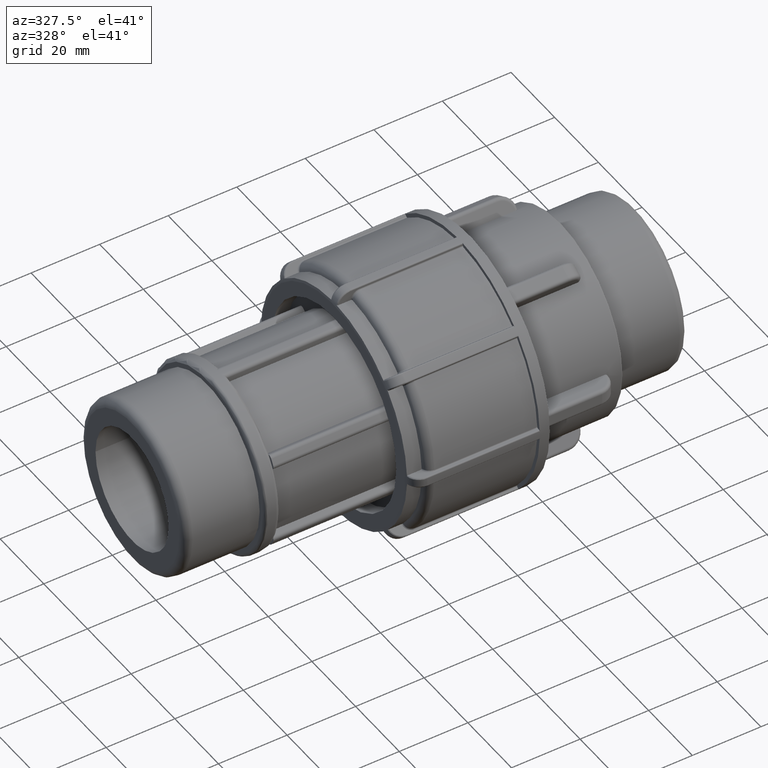
[diagram: clean part render]
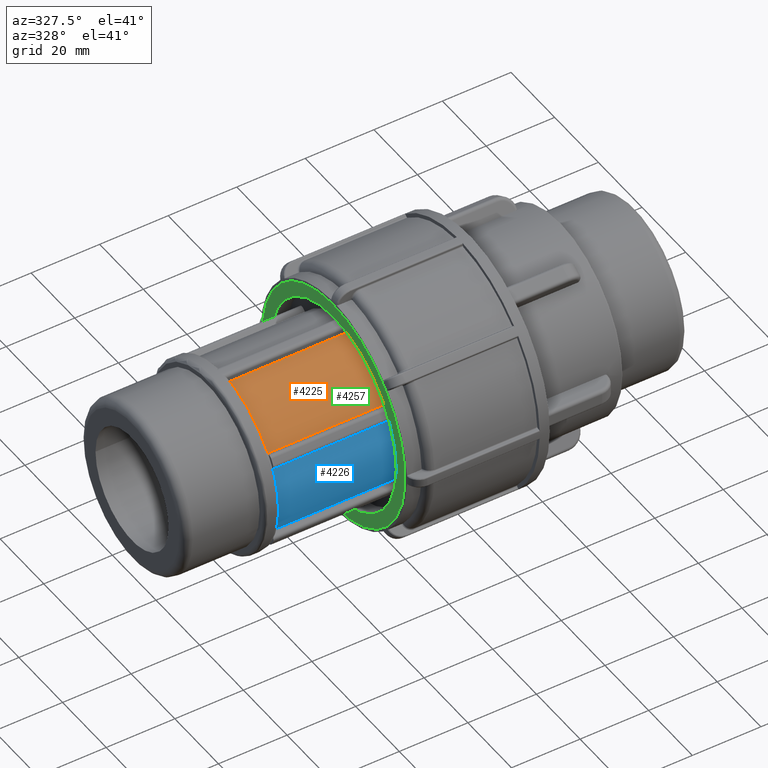
[diagram: same view with three faces highlighted in distinct colors, each labeled with its STEP entity id]
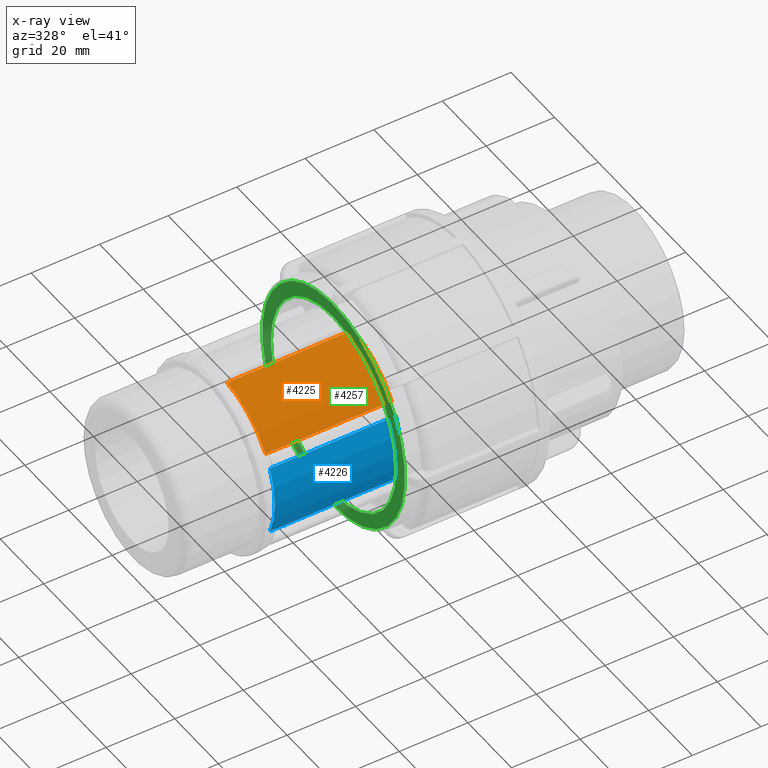
[diagram: x-ray of the same camera — body ghosted, the three highlighted faces saturated]
A machine part, auxiliary view with three faces highlighted in distinct colors.
The next image is the same camera in x-ray (body ghosted, the three faces saturated) — at least one of them is partly hidden behind the body in this view.
Their STEP definitions:

[orange] entity #4225 — the highlighted cylindrical surface (partial cylindrical patch) has radius 23.9015 mm, axis along (1, 0, 0).
#382=FACE_OUTER_BOUND('',#638,.T.);
#638=EDGE_LOOP('',(#3703,#3704,#3705,#3706));
#1033=LINE('',#8671,#1295);
#1058=LINE('',#8741,#1320);
#1295=VECTOR('',#5734,36.8);
#1320=VECTOR('',#5805,36.8);
#1555=CIRCLE('',#4670,23.9015);
#1556=CIRCLE('',#4671,23.9015);
#1953=VERTEX_POINT('',#8668);
#1954=VERTEX_POINT('',#8670);
#1975=VERTEX_POINT('',#8738);
#1976=VERTEX_POINT('',#8740);
#2549=EDGE_CURVE('',#1954,#1953,#1033,.T.);
#2583=EDGE_CURVE('',#1975,#1953,#1555,.T.);
#2584=EDGE_CURVE('',#1975,#1976,#1058,.T.);
#2585=EDGE_CURVE('',#1976,#1954,#1556,.T.);
#3703=ORIENTED_EDGE('',*,*,#2549,.T.);
#3704=ORIENTED_EDGE('',*,*,#2583,.F.);
#3705=ORIENTED_EDGE('',*,*,#2584,.T.);
#3706=ORIENTED_EDGE('',*,*,#2585,.T.);
#4000=CYLINDRICAL_SURFACE('',#4669,23.9015);
#4225=ADVANCED_FACE('',(#382),#4000,.T.);
#4669=AXIS2_PLACEMENT_3D('',#8737,#5801,#5802);
#4670=AXIS2_PLACEMENT_3D('',#8739,#5803,#5804);
#4671=AXIS2_PLACEMENT_3D('',#8742,#5806,#5807);
#5734=DIRECTION('',(1.,0.,0.));
#5801=DIRECTION('center_axis',(1.,0.,0.));
#5802=DIRECTION('ref_axis',(0.,1.,0.));
#5803=DIRECTION('center_axis',(1.,0.,0.));
#5804=DIRECTION('ref_axis',(0.,0.,-1.));
#5805=DIRECTION('',(-1.,0.,0.));
#5806=DIRECTION('center_axis',(1.,0.,0.));
#5807=DIRECTION('ref_axis',(0.,0.,-1.));
#8668=CARTESIAN_POINT('',(-83.8,-19.6769020878026,13.5683907106565));
#8670=CARTESIAN_POINT('',(-120.6,-19.6769020878026,13.5683907106565));
#8671=CARTESIAN_POINT('',(-102.2,-19.6769020878026,13.5683907106565));
#8737=CARTESIAN_POINT('Origin',(-102.2,0.,0.));
#8738=CARTESIAN_POINT('',(-83.8,-1.91212,23.8248924311444));
#8739=CARTESIAN_POINT('Origin',(-83.8,0.,0.));
#8740=CARTESIAN_POINT('',(-120.6,-1.91212,23.8248924311444));
#8741=CARTESIAN_POINT('',(-102.2,-1.91212,23.8248924311444));
#8742=CARTESIAN_POINT('Origin',(-120.6,0.,0.));

[blue] entity #4226 — the highlighted cylindrical surface (partial cylindrical patch) has radius 23.9015 mm, axis along (1, 0, 0).
#383=FACE_OUTER_BOUND('',#639,.T.);
#639=EDGE_LOOP('',(#3707,#3708,#3709,#3710));
#1025=LINE('',#8642,#1287);
#1056=LINE('',#8733,#1318);
#1287=VECTOR('',#5706,36.8);
#1318=VECTOR('',#5795,36.8);
#1557=CIRCLE('',#4673,23.9015);
#1558=CIRCLE('',#4674,23.9015);
#1942=VERTEX_POINT('',#8639);
#1943=VERTEX_POINT('',#8641);
#1973=VERTEX_POINT('',#8730);
#1974=VERTEX_POINT('',#8732);
#2535=EDGE_CURVE('',#1943,#1942,#1025,.T.);
#2580=EDGE_CURVE('',#1974,#1973,#1056,.T.);
#2586=EDGE_CURVE('',#1974,#1942,#1557,.T.);
#2587=EDGE_CURVE('',#1973,#1943,#1558,.T.);
#3707=ORIENTED_EDGE('',*,*,#2535,.T.);
#3708=ORIENTED_EDGE('',*,*,#2586,.F.);
#3709=ORIENTED_EDGE('',*,*,#2580,.T.);
#3710=ORIENTED_EDGE('',*,*,#2587,.T.);
#4001=CYLINDRICAL_SURFACE('',#4672,23.9015);
#4226=ADVANCED_FACE('',(#383),#4001,.T.);
#4672=AXIS2_PLACEMENT_3D('',#8743,#5808,#5809);
#4673=AXIS2_PLACEMENT_3D('',#8744,#5810,#5811);
#4674=AXIS2_PLACEMENT_3D('',#8745,#5812,#5813);
#5706=DIRECTION('',(1.,0.,0.));
#5795=DIRECTION('',(-1.,0.,0.));
#5808=DIRECTION('center_axis',(1.,0.,0.));
#5809=DIRECTION('ref_axis',(0.,1.,0.));
#5810=DIRECTION('center_axis',(1.,0.,0.));
#5811=DIRECTION('ref_axis',(0.,0.,-1.));
#5812=DIRECTION('center_axis',(1.,0.,0.));
#5813=DIRECTION('ref_axis',(0.,0.,-1.));
#8639=CARTESIAN_POINT('',(-83.8,-21.5890220878026,-10.2565017204879));
#8641=CARTESIAN_POINT('',(-120.6,-21.5890220878026,-10.2565017204879));
#8642=CARTESIAN_POINT('',(-102.2,-21.5890220878026,-10.2565017204879));
#8730=CARTESIAN_POINT('',(-120.6,-21.5890220878026,10.2565017204879));
#8732=CARTESIAN_POINT('',(-83.8,-21.5890220878026,10.2565017204879));
#8733=CARTESIAN_POINT('',(-102.2,-21.5890220878026,10.2565017204879));
#8743=CARTESIAN_POINT('Origin',(-102.2,0.,0.));
#8744=CARTESIAN_POINT('Origin',(-83.8,0.,0.));
#8745=CARTESIAN_POINT('Origin',(-120.6,0.,0.));

[green] entity #4257 — the highlighted planar face has unit normal (-1, 0, 0).
#57=FACE_BOUND('',#675,.T.);
#146=PLANE('',#4732);
#414=FACE_OUTER_BOUND('',#674,.T.);
#674=EDGE_LOOP('',(#3879));
#675=EDGE_LOOP('',(#3880));
#1439=CIRCLE('',#4458,32.7);
#1586=CIRCLE('',#4733,28.6818);
#1763=VERTEX_POINT('',#6694);
#1993=VERTEX_POINT('',#8866);
#2251=EDGE_CURVE('',#1763,#1763,#1439,.T.);
#2629=EDGE_CURVE('',#1993,#1993,#1586,.T.);
#3879=ORIENTED_EDGE('',*,*,#2251,.F.);
#3880=ORIENTED_EDGE('',*,*,#2629,.T.);
#4257=ADVANCED_FACE('',(#414,#57),#146,.T.);
#4458=AXIS2_PLACEMENT_3D('',#6695,#5241,#5242);
#4732=AXIS2_PLACEMENT_3D('',#8865,#5938,#5939);
#4733=AXIS2_PLACEMENT_3D('',#8867,#5940,#5941);
#5241=DIRECTION('center_axis',(1.,0.,0.));
#5242=DIRECTION('ref_axis',(0.,-9.36750677027476E-17,1.));
#5938=DIRECTION('center_axis',(-1.,0.,0.));
#5939=DIRECTION('ref_axis',(0.,0.,1.));
#5940=DIRECTION('center_axis',(1.,0.,0.));
#5941=DIRECTION('ref_axis',(0.,0.,-1.));
#6694=CARTESIAN_POINT('',(-88.2,24.1371125632937,22.06104705373));
#6695=CARTESIAN_POINT('Origin',(-88.2,0.,0.));
#8865=CARTESIAN_POINT('Origin',(-88.2,33.4621,0.));
#8866=CARTESIAN_POINT('',(-88.2,28.6818,0.));
#8867=CARTESIAN_POINT('Origin',(-88.2,0.,0.));